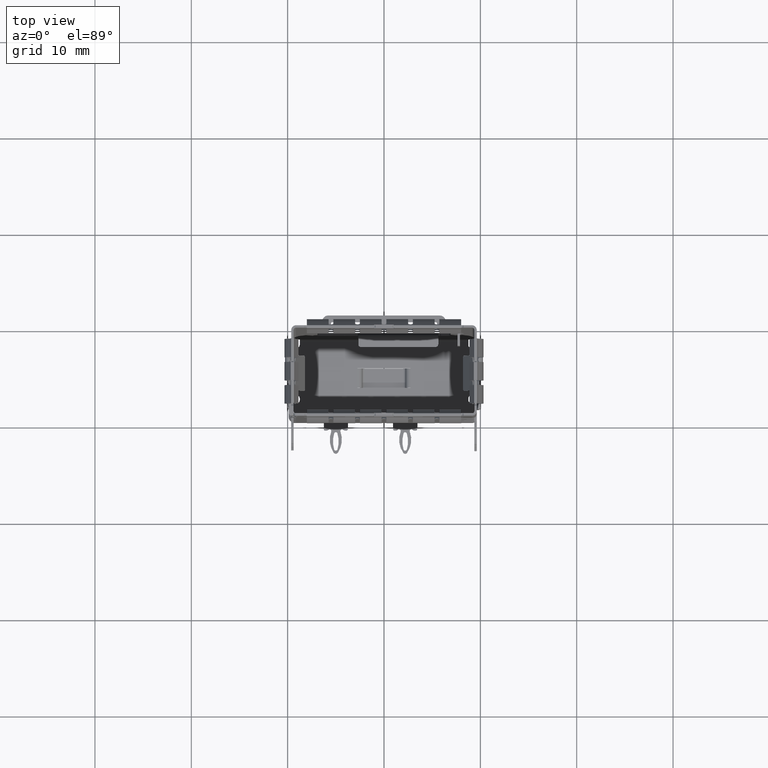
[diagram: clean part render]
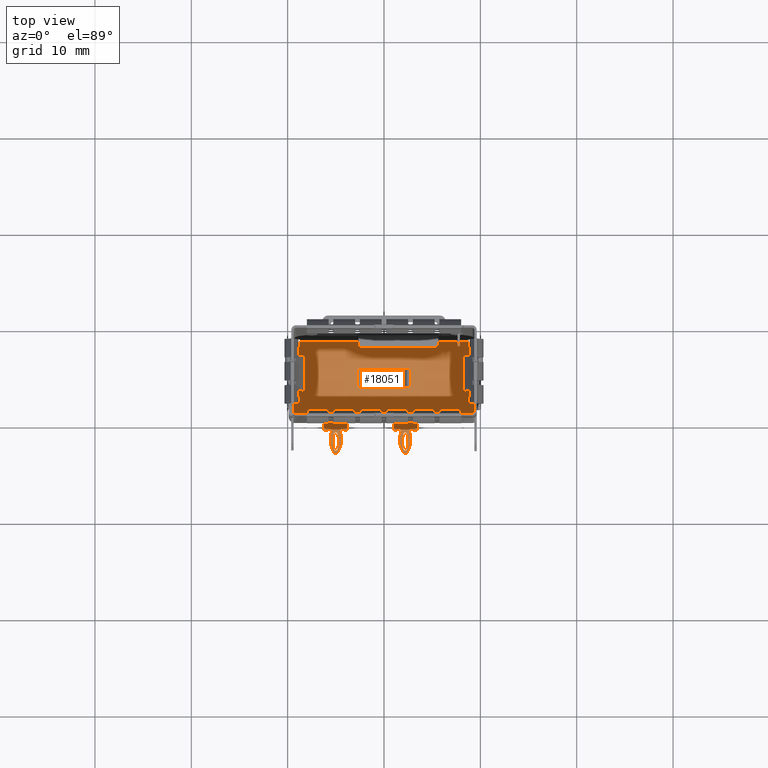
[diagram: same view with one face highlighted and labeled with its STEP entity id]
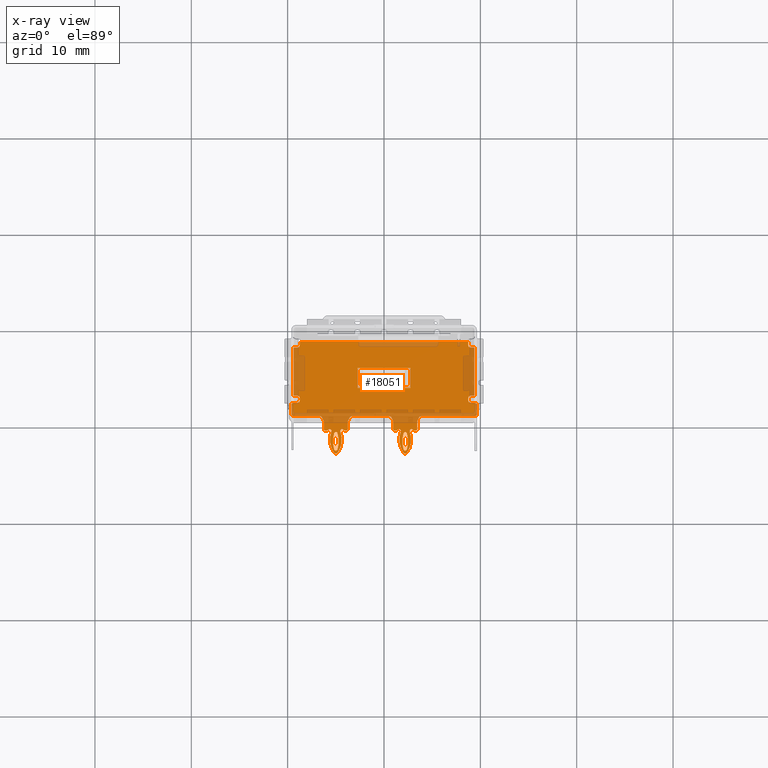
[diagram: x-ray of the same camera — body ghosted, the highlighted face saturated]
A machine part, top view. The second image highlights one B-rep face of the part: STEP entity #18051.
The next image is the same camera in x-ray: the body ghosted, the highlighted face saturated — about 21% of this face is hidden behind the body in this view.
In plain terms, the highlighted planar face has unit normal (0, 0, 1).
Its self-contained STEP definition (entity closure, byte-faithful):
#16 = EDGE_CURVE ( 'NONE', #9976, #59285, #53249, .T. ) ;
#35 = DIRECTION ( 'NONE',  ( 0.0000000000000000000, 1.000000000000000000, 0.0000000000000000000 ) ) ;
#71 = VERTEX_POINT ( 'NONE', #13064 ) ;
#84 = CIRCLE ( 'NONE', #35922, 0.2299999999999975675 ) ;
#174 = CIRCLE ( 'NONE', #49710, 0.2500000000000000000 ) ;
#234 = EDGE_CURVE ( 'NONE', #12246, #5266, #53262, .T. ) ;
#253 = DIRECTION ( 'NONE',  ( 0.0000000000000000000, 1.000000000000000000, 0.0000000000000000000 ) ) ;
#288 = ORIENTED_EDGE ( 'NONE', *, *, #8147, .F. ) ;
#400 = CARTESIAN_POINT ( 'NONE',  ( 9.375000000000000000, 1.175000001274060013, -70.97499999872590593 ) ) ;
#405 = CARTESIAN_POINT ( 'NONE',  ( 2.372341041624769886, -0.5880522823246390196, -70.97499999872590593 ) ) ;
#445 = EDGE_CURVE ( 'NONE', #2492, #12336, #13136, .T. ) ;
#480 = ORIENTED_EDGE ( 'NONE', *, *, #51686, .F. ) ;
#639 = VECTOR ( 'NONE', #13170, 1000.000000000000000 ) ;
#687 = ORIENTED_EDGE ( 'NONE', *, *, #45535, .T. ) ;
#706 = CARTESIAN_POINT ( 'NONE',  ( 0.9499999999999999556, -0.1500000000000849820, -70.97499999872590593 ) ) ;
#786 = CIRCLE ( 'NONE', #53795, 0.2500000000000054401 ) ;
#801 = EDGE_CURVE ( 'NONE', #36220, #59285, #2292, .T. ) ;
#829 = CIRCLE ( 'NONE', #34417, 2.364381171422969885 ) ;
#954 = VECTOR ( 'NONE', #47541, 1000.000000000000000 ) ;
#1110 = ORIENTED_EDGE ( 'NONE', *, *, #54212, .F. ) ;
#1243 = EDGE_CURVE ( 'NONE', #44148, #28391, #64902, .T. ) ;
#1290 = ORIENTED_EDGE ( 'NONE', *, *, #46454, .F. ) ;
#1402 = AXIS2_PLACEMENT_3D ( 'NONE', #13937, #62127, #14843 ) ;
#1525 = LINE ( 'NONE', #30638, #33148 ) ;
#1847 = AXIS2_PLACEMENT_3D ( 'NONE', #22732, #59743, #48893 ) ;
#1944 = ORIENTED_EDGE ( 'NONE', *, *, #14361, .T. ) ;
#1969 = VECTOR ( 'NONE', #44463, 1000.000000000000000 ) ;
#2084 = CIRCLE ( 'NONE', #41105, 0.2000000000000000944 ) ;
#2096 = DIRECTION ( 'NONE',  ( -2.980035255129504954E-33, 0.0000000000000000000, -1.000000000000000000 ) ) ;
#2228 = ORIENTED_EDGE ( 'NONE', *, *, #59163, .T. ) ;
#2234 = VERTEX_POINT ( 'NONE', #56062 ) ;
#2292 = LINE ( 'NONE', #46329, #21410 ) ;
#2492 = VERTEX_POINT ( 'NONE', #22074 ) ;
#2574 = AXIS2_PLACEMENT_3D ( 'NONE', #45416, #2096, #50817 ) ;
#2658 = CARTESIAN_POINT ( 'NONE',  ( -5.000000000000000000, -2.680000000000095195, -70.97499999872590593 ) ) ;
#2758 = EDGE_CURVE ( 'NONE', #21414, #36253, #46826, .T. ) ;
#2893 = CARTESIAN_POINT ( 'NONE',  ( 3.013457455320160072, -0.2421942221073714874, -70.97499999872590593 ) ) ;
#2906 = CIRCLE ( 'NONE', #32867, 2.882717391304339571 ) ;
#2934 = ORIENTED_EDGE ( 'NONE', *, *, #47351, .T. ) ;
#2997 = CARTESIAN_POINT ( 'NONE',  ( 2.750000000000000000, 4.150000000000000355, -70.97499999872600540 ) ) ;
#3058 = CARTESIAN_POINT ( 'NONE',  ( -3.345491502812535156, 1.175000001274046024, -70.97499999872590593 ) ) ;
#3072 = VERTEX_POINT ( 'NONE', #36867 ) ;
#3310 = DIRECTION ( 'NONE',  ( -1.000000000000000000, 0.0000000000000000000, 0.0000000000000000000 ) ) ;
#3318 = CARTESIAN_POINT ( 'NONE',  ( 2.750000000000000000, 4.150000000000255262, -70.97499999872600540 ) ) ;
#3543 = DIRECTION ( 'NONE',  ( 1.000000000000000000, 0.0000000000000000000, 0.0000000000000000000 ) ) ;
#3557 = LINE ( 'NONE', #62737, #38527 ) ;
#3566 = VERTEX_POINT ( 'NONE', #25786 ) ;
#3617 = EDGE_CURVE ( 'NONE', #36253, #53791, #10046, .T. ) ;
#3663 = DIRECTION ( 'NONE',  ( -5.256737797871670339E-16, -1.000000000000000000, 0.0000000000000000000 ) ) ;
#3683 = CARTESIAN_POINT ( 'NONE',  ( -2.734846922834955230, 6.150000000000000355, -70.97499999872600540 ) ) ;
#3720 = DIRECTION ( 'NONE',  ( -1.000000000000000000, 0.0000000000000000000, 0.0000000000000000000 ) ) ;
#3845 = ORIENTED_EDGE ( 'NONE', *, *, #445, .F. ) ;
#3869 = EDGE_CURVE ( 'NONE', #65779, #47161, #66962, .T. ) ;
#4022 = DIRECTION ( 'NONE',  ( 0.0000000000000000000, 0.0000000000000000000, -1.000000000000000000 ) ) ;
#4062 = AXIS2_PLACEMENT_3D ( 'NONE', #61003, #28618, #39846 ) ;
#4173 = VERTEX_POINT ( 'NONE', #9898 ) ;
#4355 = EDGE_CURVE ( 'NONE', #12336, #32559, #62635, .T. ) ;
#4358 = EDGE_CURVE ( 'NONE', #34842, #20927, #52585, .T. ) ;
#4378 = VERTEX_POINT ( 'NONE', #41192 ) ;
#4389 = LINE ( 'NONE', #30319, #17743 ) ;
#4480 = CARTESIAN_POINT ( 'NONE',  ( -6.250000000000000000, 0.6750000012740611233, -70.97499999872590593 ) ) ;
#4498 = ORIENTED_EDGE ( 'NONE', *, *, #55720, .T. ) ;
#4673 = CARTESIAN_POINT ( 'NONE',  ( -8.750000000000000000, 8.900000000000000355, -70.97499999872600540 ) ) ;
#4777 = ORIENTED_EDGE ( 'NONE', *, *, #11010, .F. ) ;
#4861 = CIRCLE ( 'NONE', #26140, 0.2299999999999975675 ) ;
#4873 = DIRECTION ( 'NONE',  ( 0.0000000000000000000, -1.000000000000000000, 0.0000000000000000000 ) ) ;
#4970 = ORIENTED_EDGE ( 'NONE', *, *, #46073, .T. ) ;
#5051 = CARTESIAN_POINT ( 'NONE',  ( -2.412282608695660358, -1.420000000000100071, -70.97499999872590593 ) ) ;
#5205 = VECTOR ( 'NONE', #9260, 1000.000000000000000 ) ;
#5266 = VERTEX_POINT ( 'NONE', #14863 ) ;
#5417 = ORIENTED_EDGE ( 'NONE', *, *, #4355, .F. ) ;
#5539 = DIRECTION ( 'NONE',  ( 1.000000000000000000, -1.577021341797094849E-16, 5.506140585841919089E-31 ) ) ;
#5576 = ORIENTED_EDGE ( 'NONE', *, *, #11807, .T. ) ;
#5577 = EDGE_CURVE ( 'NONE', #63999, #33264, #30572, .T. ) ;
#5579 = CIRCLE ( 'NONE', #27964, 0.1800000000000000488 ) ;
#5627 = CIRCLE ( 'NONE', #35529, 0.1800000000000000488 ) ;
#5636 = DIRECTION ( 'NONE',  ( 1.445602896647314107E-14, 1.000000000000000000, -3.491481338843135327E-15 ) ) ;
#5664 = AXIS2_PLACEMENT_3D ( 'NONE', #34576, #18992, #8071 ) ;
#5708 = VECTOR ( 'NONE', #52356, 1000.000000000000000 ) ;
#5776 = CIRCLE ( 'NONE', #60738, 0.2500000000000000000 ) ;
#5809 = CARTESIAN_POINT ( 'NONE',  ( -5.172341041624769709, -0.5880522823246460140, -70.97499999872590593 ) ) ;
#5822 = DIRECTION ( 'NONE',  ( -2.980035255129504954E-33, -4.814134000674680451E-15, -1.000000000000000000 ) ) ;
#5900 = ORIENTED_EDGE ( 'NONE', *, *, #56232, .F. ) ;
#6158 = CIRCLE ( 'NONE', #23884, 0.1499999999999974132 ) ;
#6332 = CARTESIAN_POINT ( 'NONE',  ( 9.000000000000000000, 3.060000001274044923, -70.97499999872600540 ) ) ;
#6399 = EDGE_CURVE ( 'NONE', #48589, #21064, #52330, .T. ) ;
#6407 = CARTESIAN_POINT ( 'NONE',  ( 9.000000000000000000, 8.310000001274049808, -70.97499999872600540 ) ) ;
#6425 = CARTESIAN_POINT ( 'NONE',  ( 8.750000000000000000, 3.060000001274044923, -70.97499999872600540 ) ) ;
#6647 = CARTESIAN_POINT ( 'NONE',  ( 0.5454915028125389975, 1.175000001274046024, -70.97499999872590593 ) ) ;
#6713 = CARTESIAN_POINT ( 'NONE',  ( -8.750000000000000000, 2.820000001274039825, -70.97499999872590593 ) ) ;
#7041 = CARTESIAN_POINT ( 'NONE',  ( -3.750000000000000000, -0.1500000000000925038, -70.97499999872590593 ) ) ;
#7081 = VECTOR ( 'NONE', #49875, 1000.000000000000227 ) ;
#7160 = VERTEX_POINT ( 'NONE', #11519 ) ;
#7395 = EDGE_CURVE ( 'NONE', #66424, #48589, #16195, .T. ) ;
#7407 = ORIENTED_EDGE ( 'NONE', *, *, #3617, .T. ) ;
#7460 = VERTEX_POINT ( 'NONE', #30746 ) ;
#7659 = EDGE_LOOP ( 'NONE', ( #7897, #39754, #30236, #19065, #59412 ) ) ;
#7730 = EDGE_CURVE ( 'NONE', #68469, #47020, #64729, .T. ) ;
#7732 = CIRCLE ( 'NONE', #38437, 0.2500000000000000000 ) ;
#7897 = ORIENTED_EDGE ( 'NONE', *, *, #69272, .T. ) ;
#8046 = CARTESIAN_POINT ( 'NONE',  ( -2.734846922834955230, 6.150000000000000355, -70.97499999872600540 ) ) ;
#8071 = DIRECTION ( 'NONE',  ( 0.0000000000000000000, 1.000000000000000000, 0.0000000000000000000 ) ) ;
#8147 = EDGE_CURVE ( 'NONE', #9976, #61715, #25204, .T. ) ;
#8254 = ORIENTED_EDGE ( 'NONE', *, *, #12712, .F. ) ;
#8389 = CIRCLE ( 'NONE', #21976, 2.882717391304345345 ) ;
#8573 = DIRECTION ( 'NONE',  ( 0.0000000000000000000, -1.000000000000000000, 0.0000000000000000000 ) ) ;
#8637 = CARTESIAN_POINT ( 'NONE',  ( -9.125000000000000000, 9.244048621274050248, -70.97499999872600540 ) ) ;
#8699 = DIRECTION ( 'NONE',  ( 6.938893903907228378E-15, -1.000000000000000000, 0.0000000000000000000 ) ) ;
#8756 = DIRECTION ( 'NONE',  ( 0.0000000000000000000, 1.000000000000000000, 0.0000000000000000000 ) ) ;
#8871 = CIRCLE ( 'NONE', #64331, 0.1999999999999920730 ) ;
#9026 = VERTEX_POINT ( 'NONE', #59761 ) ;
#9051 = ORIENTED_EDGE ( 'NONE', *, *, #61180, .T. ) ;
#9257 = VECTOR ( 'NONE', #34586, 999.9999999999998863 ) ;
#9260 = DIRECTION ( 'NONE',  ( -1.051347559574333871E-15, 1.000000000000000000, 0.0000000000000000000 ) ) ;
#9264 = DIRECTION ( 'NONE',  ( -1.000000000000000000, 0.0000000000000000000, 0.0000000000000000000 ) ) ;
#9269 = CARTESIAN_POINT ( 'NONE',  ( 2.200000000000000178, -2.450000000000090328, -70.97499999872590593 ) ) ;
#9298 = VECTOR ( 'NONE', #40248, 1000.000000000000000 ) ;
#9328 = CARTESIAN_POINT ( 'NONE',  ( -2.750000000000000000, 4.139999999999999680, -70.97499999872600540 ) ) ;
#9479 = DIRECTION ( 'NONE',  ( 0.0000000000000000000, -1.000000000000000000, 0.0000000000000000000 ) ) ;
#9497 = CIRCLE ( 'NONE', #63794, 2.882717391304345345 ) ;
#9527 = VECTOR ( 'NONE', #66491, 1000.000000000000000 ) ;
#9556 = LINE ( 'NONE', #18366, #7081 ) ;
#9640 = AXIS2_PLACEMENT_3D ( 'NONE', #56544, #45498, #56094 ) ;
#9819 = CARTESIAN_POINT ( 'NONE',  ( -5.950000000000000178, -0.1500000000000925038, -70.97499999872590593 ) ) ;
#9882 = ORIENTED_EDGE ( 'NONE', *, *, #16, .T. ) ;
#9898 = CARTESIAN_POINT ( 'NONE',  ( -9.625000000000000000, 1.425000001274060013, -70.97499999872590593 ) ) ;
#9957 = VECTOR ( 'NONE', #15955, 1000.000000000000000 ) ;
#9976 = VERTEX_POINT ( 'NONE', #6647 ) ;
#10029 = DIRECTION ( 'NONE',  ( -2.980035255129504954E-33, 0.0000000000000000000, -1.000000000000000000 ) ) ;
#10046 = LINE ( 'NONE', #52721, #41743 ) ;
#10195 = AXIS2_PLACEMENT_3D ( 'NONE', #9819, #31881, #35 ) ;
#10262 = LINE ( 'NONE', #61445, #38571 ) ;
#10370 = DIRECTION ( 'NONE',  ( 0.0000000000000000000, 0.0000000000000000000, -1.000000000000000000 ) ) ;
#10419 = EDGE_CURVE ( 'NONE', #29020, #25870, #44274, .T. ) ;
#10646 = DIRECTION ( 'NONE',  ( 0.0000000000000000000, 0.0000000000000000000, -1.000000000000000000 ) ) ;
#10830 = EDGE_CURVE ( 'NONE', #14100, #12246, #20096, .T. ) ;
#10922 = CARTESIAN_POINT ( 'NONE',  ( 3.854508497187460137, 1.175000001274046024, -70.97499999872590593 ) ) ;
#11010 = EDGE_CURVE ( 'NONE', #28391, #7160, #51840, .T. ) ;
#11060 = ORIENTED_EDGE ( 'NONE', *, *, #59111, .F. ) ;
#11180 = VERTEX_POINT ( 'NONE', #6407 ) ;
#11417 = AXIS2_PLACEMENT_3D ( 'NONE', #47047, #19960, #51778 ) ;
#11452 = DIRECTION ( 'NONE',  ( 0.0000000000000000000, 1.000000000000000000, 0.0000000000000000000 ) ) ;
#11508 = CIRCLE ( 'NONE', #56741, 0.1999999999999974853 ) ;
#11519 = CARTESIAN_POINT ( 'NONE',  ( -8.750000000000000000, 8.560000001274049808, -70.97499999872600540 ) ) ;
#11646 = CIRCLE ( 'NONE', #55488, 0.1500000000000034917 ) ;
#11725 = CIRCLE ( 'NONE', #27555, 0.2500000000000000000 ) ;
#11746 = CARTESIAN_POINT ( 'NONE',  ( -4.827658958375230291, -2.251947717675545135, -70.97499999872590593 ) ) ;
#11807 = EDGE_CURVE ( 'NONE', #3072, #19749, #829, .T. ) ;
#12073 = CARTESIAN_POINT ( 'NONE',  ( -5.000000000000000000, -0.6400000000000970468, -70.97499999872590593 ) ) ;
#12189 = EDGE_CURVE ( 'NONE', #20140, #67539, #63482, .T. ) ;
#12246 = VERTEX_POINT ( 'NONE', #8046 ) ;
#12257 = VERTEX_POINT ( 'NONE', #29424 ) ;
#12330 = DIRECTION ( 'NONE',  ( 0.0000000000000000000, -1.000000000000000000, 4.814134000674686762E-15 ) ) ;
#12336 = VERTEX_POINT ( 'NONE', #42425 ) ;
#12448 = LINE ( 'NONE', #51655, #67703 ) ;
#12712 = EDGE_CURVE ( 'NONE', #17972, #36819, #1525, .T. ) ;
#12787 = VERTEX_POINT ( 'NONE', #30406 ) ;
#12918 = VERTEX_POINT ( 'NONE', #405 ) ;
#13064 = CARTESIAN_POINT ( 'NONE',  ( 1.328465195488786055, -0.2778405768796764486, -70.97499999872590593 ) ) ;
#13136 = LINE ( 'NONE', #16974, #54147 ) ;
#13170 = DIRECTION ( 'NONE',  ( -1.000000000000000000, 0.0000000000000000000, 0.0000000000000000000 ) ) ;
#13306 = VECTOR ( 'NONE', #16950, 1000.000000000000000 ) ;
#13673 = CIRCLE ( 'NONE', #67339, 2.364381171422969441 ) ;
#13682 = VERTEX_POINT ( 'NONE', #54924 ) ;
#13715 = CARTESIAN_POINT ( 'NONE',  ( -4.128465195488789874, -0.2778405768796894937, -70.97499999872590593 ) ) ;
#13919 = CARTESIAN_POINT ( 'NONE',  ( 3.449999999999999734, 0.6750000012740680067, -70.97499999872590593 ) ) ;
#13937 = CARTESIAN_POINT ( 'NONE',  ( -4.355000000000000426, -0.3500000000000985101, -70.97499999872590593 ) ) ;
#13991 = CARTESIAN_POINT ( 'NONE',  ( 2.750000000000000000, 6.150000000000000355, -70.97499999872600540 ) ) ;
#14100 = VERTEX_POINT ( 'NONE', #49418 ) ;
#14117 = CARTESIAN_POINT ( 'NONE',  ( 3.449999999999999734, 0.6750000012740680067, -70.97499999872590593 ) ) ;
#14226 = CARTESIAN_POINT ( 'NONE',  ( -3.899999999999999911, -0.3000000000000899725, -70.97499999872590593 ) ) ;
#14244 = CARTESIAN_POINT ( 'NONE',  ( 9.000000000000000000, 2.570000001274039825, -70.97499999872590593 ) ) ;
#14361 = EDGE_CURVE ( 'NONE', #41388, #14100, #15446, .T. ) ;
#14377 = DIRECTION ( 'NONE',  ( -0.4472135954999519325, 0.8944271909999189640, 0.0000000000000000000 ) ) ;
#14380 = CIRCLE ( 'NONE', #43380, 0.2499999999999997780 ) ;
#14720 = VERTEX_POINT ( 'NONE', #26103 ) ;
#14829 = DIRECTION ( 'NONE',  ( 1.000000000000000000, 0.0000000000000000000, 0.0000000000000000000 ) ) ;
#14843 = DIRECTION ( 'NONE',  ( 0.0000000000000000000, -1.000000000000000000, 0.0000000000000000000 ) ) ;
#14863 = CARTESIAN_POINT ( 'NONE',  ( -2.750000000000000000, 6.150000000000000355, -70.97499999872600540 ) ) ;
#14866 = EDGE_CURVE ( 'NONE', #58103, #63086, #51346, .T. ) ;
#14930 = DIRECTION ( 'NONE',  ( -0.8522705125306180296, -0.5231013032585539735, 0.0000000000000000000 ) ) ;
#14974 = CIRCLE ( 'NONE', #48080, 0.2500000000000054401 ) ;
#15069 = CIRCLE ( 'NONE', #1847, 2.364381171422974770 ) ;
#15321 = DIRECTION ( 'NONE',  ( 0.0000000000000000000, 0.0000000000000000000, 1.000000000000000000 ) ) ;
#15352 = DIRECTION ( 'NONE',  ( 0.0000000000000000000, -1.000000000000000000, 3.491481338843135327E-15 ) ) ;
#15409 = ORIENTED_EDGE ( 'NONE', *, *, #10830, .T. ) ;
#15446 = LINE ( 'NONE', #2997, #31262 ) ;
#15575 = EDGE_CURVE ( 'NONE', #43080, #63998, #54597, .T. ) ;
#15646 = ORIENTED_EDGE ( 'NONE', *, *, #10419, .F. ) ;
#15863 = DIRECTION ( 'NONE',  ( -1.051347559574333871E-15, 1.000000000000000000, 0.0000000000000000000 ) ) ;
#15955 = DIRECTION ( 'NONE',  ( -1.000000000000000000, 0.0000000000000000000, 0.0000000000000000000 ) ) ;
#16066 = AXIS2_PLACEMENT_3D ( 'NONE', #42542, #58751, #63890 ) ;
#16195 = LINE ( 'NONE', #25617, #65610 ) ;
#16200 = AXIS2_PLACEMENT_3D ( 'NONE', #51247, #61603, #8756 ) ;
#16443 = EDGE_CURVE ( 'NONE', #21064, #42427, #54234, .T. ) ;
#16546 = LINE ( 'NONE', #52580, #5708 ) ;
#16652 = VERTEX_POINT ( 'NONE', #50778 ) ;
#16699 = ORIENTED_EDGE ( 'NONE', *, *, #42034, .F. ) ;
#16742 = VECTOR ( 'NONE', #35771, 1000.000000000000227 ) ;
#16950 = DIRECTION ( 'NONE',  ( -1.000000000000000000, 0.0000000000000000000, 0.0000000000000000000 ) ) ;
#16963 = DIRECTION ( 'NONE',  ( 0.0000000000000000000, 0.0000000000000000000, 1.000000000000000000 ) ) ;
#16974 = CARTESIAN_POINT ( 'NONE',  ( 3.299999999999999822, -0.3000000000000819789, -70.97499999872590593 ) ) ;
#17297 = AXIS2_PLACEMENT_3D ( 'NONE', #32196, #37811, #21986 ) ;
#17443 = VECTOR ( 'NONE', #24522, 1000.000000000000000 ) ;
#17743 = VECTOR ( 'NONE', #67873, 1000.000000000000000 ) ;
#17861 = CARTESIAN_POINT ( 'NONE',  ( -9.000000000000000000, 3.060000001274044923, -70.97499999872600540 ) ) ;
#17966 = DIRECTION ( 'NONE',  ( 0.0000000000000000000, 0.0000000000000000000, -1.000000000000000000 ) ) ;
#17972 = VERTEX_POINT ( 'NONE', #9328 ) ;
#18051 = ADVANCED_FACE ( 'NONE', ( #24777, #61648, #67550, #53296 ), #51124, .T. ) ;
#18104 = CARTESIAN_POINT ( 'NONE',  ( 2.750000000000000000, 6.150000000000000355, -70.97499999872600540 ) ) ;
#18303 = CARTESIAN_POINT ( 'NONE',  ( 9.000000000000000000, 8.310000001274049808, -70.97499999872600540 ) ) ;
#18366 = CARTESIAN_POINT ( 'NONE',  ( 2.939158234586535023, -0.1965913077445869961, -70.97499999872590593 ) ) ;
#18512 = CARTESIAN_POINT ( 'NONE',  ( 9.625000000000000000, 1.425000001274060013, -70.97499999872590593 ) ) ;
#18645 = CIRCLE ( 'NONE', #28871, 0.2299999999999975675 ) ;
#18649 = CARTESIAN_POINT ( 'NONE',  ( -6.430901699437489683, 1.036803400149030052, -70.97499999872590593 ) ) ;
#18747 = DIRECTION ( 'NONE',  ( 1.000000000000000000, 0.0000000000000000000, 0.0000000000000000000 ) ) ;
#18901 = CARTESIAN_POINT ( 'NONE',  ( -4.810409839233400042, -2.580213558973400101, -70.97499999872590593 ) ) ;
#18925 = DIRECTION ( 'NONE',  ( -2.980035255129504954E-33, 0.0000000000000000000, -1.000000000000000000 ) ) ;
#18992 = DIRECTION ( 'NONE',  ( 0.0000000000000000000, 0.0000000000000000000, 1.000000000000000000 ) ) ;
#19058 = LINE ( 'NONE', #6425, #58406 ) ;
#19065 = ORIENTED_EDGE ( 'NONE', *, *, #63229, .T. ) ;
#19130 = ORIENTED_EDGE ( 'NONE', *, *, #57378, .T. ) ;
#19222 = CARTESIAN_POINT ( 'NONE',  ( -5.000000000000000000, -0.4600000000000959988, -70.97499999872590593 ) ) ;
#19282 = CARTESIAN_POINT ( 'NONE',  ( -9.125000000000000000, 8.900000000000000355, -70.97499999872600540 ) ) ;
#19349 = ORIENTED_EDGE ( 'NONE', *, *, #14866, .F. ) ;
#19523 = EDGE_CURVE ( 'NONE', #2234, #22098, #58874, .T. ) ;
#19635 = AXIS2_PLACEMENT_3D ( 'NONE', #32213, #47688, #42561 ) ;
#19749 = VERTEX_POINT ( 'NONE', #42459 ) ;
#19825 = EDGE_CURVE ( 'NONE', #68133, #32677, #64731, .T. ) ;
#19914 = LINE ( 'NONE', #4480, #39937 ) ;
#19943 = VERTEX_POINT ( 'NONE', #19222 ) ;
#19960 = DIRECTION ( 'NONE',  ( -2.980035255129504954E-33, 0.0000000000000000000, -1.000000000000000000 ) ) ;
#20053 = CIRCLE ( 'NONE', #35303, 0.2500000000000000000 ) ;
#20096 = LINE ( 'NONE', #3683, #9298 ) ;
#20140 = VERTEX_POINT ( 'NONE', #37573 ) ;
#20143 = DIRECTION ( 'NONE',  ( -0.4472135954999519325, -0.8944271909999189640, 0.0000000000000000000 ) ) ;
#20345 = ORIENTED_EDGE ( 'NONE', *, *, #31523, .T. ) ;
#20706 = DIRECTION ( 'NONE',  ( -2.980035255129504954E-33, 0.0000000000000000000, -1.000000000000000000 ) ) ;
#20895 = CIRCLE ( 'NONE', #56011, 0.2299999999999975675 ) ;
#20911 = VECTOR ( 'NONE', #20143, 999.9999999999998863 ) ;
#20927 = VERTEX_POINT ( 'NONE', #55570 ) ;
#20943 = ORIENTED_EDGE ( 'NONE', *, *, #59360, .T. ) ;
#21064 = VERTEX_POINT ( 'NONE', #57655 ) ;
#21410 = VECTOR ( 'NONE', #14377, 999.9999999999998863 ) ;
#21414 = VERTEX_POINT ( 'NONE', #56631 ) ;
#21470 = CARTESIAN_POINT ( 'NONE',  ( -9.000000000000000000, 8.310000001274049808, -70.97499999872600540 ) ) ;
#21542 = CARTESIAN_POINT ( 'NONE',  ( -5.813457455320159895, -0.2421942221073855039, -70.97499999872590593 ) ) ;
#21813 = CARTESIAN_POINT ( 'NONE',  ( 9.424999999999998934, 2.370000001274035206, -70.97499999872590593 ) ) ;
#21878 = DIRECTION ( 'NONE',  ( 0.0000000000000000000, 1.000000000000000000, -4.814134000674677295E-15 ) ) ;
#21976 = AXIS2_PLACEMENT_3D ( 'NONE', #53491, #31631, #58868 ) ;
#21986 = DIRECTION ( 'NONE',  ( 0.0000000000000000000, -1.000000000000000000, 0.0000000000000000000 ) ) ;
#22074 = CARTESIAN_POINT ( 'NONE',  ( 3.299999999999999822, -0.3000000000000819789, -70.97499999872590593 ) ) ;
#22086 = VECTOR ( 'NONE', #26409, 1000.000000000000000 ) ;
#22098 = VERTEX_POINT ( 'NONE', #62426 ) ;
#22188 = CARTESIAN_POINT ( 'NONE',  ( 3.630901699437480090, 1.036803400149030052, -70.97499999872590593 ) ) ;
#22222 = EDGE_CURVE ( 'NONE', #71, #63999, #45895, .T. ) ;
#22732 = CARTESIAN_POINT ( 'NONE',  ( 0.4406188285770230029, -1.241628832449642061, -70.97499999872590593 ) ) ;
#22903 = EDGE_CURVE ( 'NONE', #20140, #41254, #5776, .T. ) ;
#22915 = VERTEX_POINT ( 'NONE', #35193 ) ;
#22951 = VECTOR ( 'NONE', #18747, 1000.000000000000000 ) ;
#22985 = DIRECTION ( 'NONE',  ( 0.0000000000000000000, 1.000000000000000000, 0.0000000000000000000 ) ) ;
#23004 = VECTOR ( 'NONE', #3663, 1000.000000000000000 ) ;
#23018 = EDGE_CURVE ( 'NONE', #49180, #63788, #19914, .T. ) ;
#23173 = CARTESIAN_POINT ( 'NONE',  ( 1.742521355890215062, -0.4195394929885504776, -70.97499999872590593 ) ) ;
#23334 = VECTOR ( 'NONE', #45136, 1000.000000000000000 ) ;
#23386 = VECTOR ( 'NONE', #24557, 1000.000000000000000 ) ;
#23463 = ORIENTED_EDGE ( 'NONE', *, *, #6399, .F. ) ;
#23468 = CARTESIAN_POINT ( 'NONE',  ( -6.500000000000000000, 1.175000001274060013, -70.97499999872590593 ) ) ;
#23555 = EDGE_CURVE ( 'NONE', #33264, #64430, #49886, .T. ) ;
#23749 = LINE ( 'NONE', #32219, #22086 ) ;
#23864 = VECTOR ( 'NONE', #3310, 1000.000000000000000 ) ;
#23884 = AXIS2_PLACEMENT_3D ( 'NONE', #26762, #20706, #253 ) ;
#24000 = CARTESIAN_POINT ( 'NONE',  ( 0.5454915028125379983, 0.9250000012740420274, -70.97499999872590593 ) ) ;
#24039 = DIRECTION ( 'NONE',  ( -4.845403715540890270E-29, -6.724348460747230314E-43, -1.000000000000000000 ) ) ;
#24078 = CARTESIAN_POINT ( 'NONE',  ( 9.379999998725960353, 9.244048621274050248, -70.97499999872600540 ) ) ;
#24216 = DIRECTION ( 'NONE',  ( -0.0000000000000000000, 3.491481338843135327E-15, 1.000000000000000000 ) ) ;
#24266 = CARTESIAN_POINT ( 'NONE',  ( 9.000000000000000000, 2.820000001274039825, -70.97499999872590593 ) ) ;
#24475 = DIRECTION ( 'NONE',  ( 0.0000000000000000000, -1.000000000000000000, 0.0000000000000000000 ) ) ;
#24522 = DIRECTION ( 'NONE',  ( 0.0000000000000000000, -1.000000000000000000, 3.491481338843135327E-15 ) ) ;
#24557 = DIRECTION ( 'NONE',  ( -1.000000000000000000, 0.0000000000000000000, 0.0000000000000000000 ) ) ;
#24580 = CARTESIAN_POINT ( 'NONE',  ( 3.959381171422974521, -1.241628832449642061, -70.97499999872590593 ) ) ;
#24602 = LINE ( 'NONE', #23468, #40490 ) ;
#24604 = DIRECTION ( 'NONE',  ( -5.256737797871670339E-16, -1.000000000000000000, 0.0000000000000000000 ) ) ;
#24681 = DIRECTION ( 'NONE',  ( -1.000000000000000000, 1.577021341797100025E-16, -5.506140585841929599E-31 ) ) ;
#24777 = FACE_OUTER_BOUND ( 'NONE', #44758, .T. ) ;
#25049 = CARTESIAN_POINT ( 'NONE',  ( -9.000000000000000000, 2.570000001274039825, -70.97499999872590593 ) ) ;
#25174 = DIRECTION ( 'NONE',  ( 0.0000000000000000000, 1.000000000000000000, 0.0000000000000000000 ) ) ;
#25204 = LINE ( 'NONE', #50085, #1969 ) ;
#25233 = DIRECTION ( 'NONE',  ( 0.0000000000000000000, 1.000000000000000000, -3.491481338843135327E-15 ) ) ;
#25273 = DIRECTION ( 'NONE',  ( 0.0000000000000000000, 1.000000000000000000, 0.0000000000000000000 ) ) ;
#25566 = ORIENTED_EDGE ( 'NONE', *, *, #49928, .T. ) ;
#25617 = CARTESIAN_POINT ( 'NONE',  ( -5.739158234586540175, -0.1965913077446085067, -70.97499999872590593 ) ) ;
#25751 = VERTEX_POINT ( 'NONE', #51523 ) ;
#25786 = CARTESIAN_POINT ( 'NONE',  ( 0.9499999999999999556, 0.6159830068991221097, -70.97499999872590593 ) ) ;
#25870 = VERTEX_POINT ( 'NONE', #53389 ) ;
#26081 = VERTEX_POINT ( 'NONE', #34066 ) ;
#26103 = CARTESIAN_POINT ( 'NONE',  ( -6.276393202250029724, 0.7277864057741020298, -70.97499999872590593 ) ) ;
#26140 = AXIS2_PLACEMENT_3D ( 'NONE', #9269, #62783, #9479 ) ;
#26314 = LINE ( 'NONE', #14226, #23864 ) ;
#26405 = VECTOR ( 'NONE', #24681, 1000.000000000000000 ) ;
#26409 = DIRECTION ( 'NONE',  ( 2.431304321945504834E-16, 1.000000000000000000, -3.491481338843135327E-15 ) ) ;
#26630 = DIRECTION ( 'NONE',  ( 0.0000000000000000000, 0.0000000000000000000, 1.000000000000000000 ) ) ;
#26754 = ORIENTED_EDGE ( 'NONE', *, *, #53374, .F. ) ;
#26762 = CARTESIAN_POINT ( 'NONE',  ( 3.299999999999999822, -0.1500000000000849820, -70.97499999872590593 ) ) ;
#26952 = CARTESIAN_POINT ( 'NONE',  ( -3.500000000000000000, 0.6159830068991131169, -70.97499999872590593 ) ) ;
#27264 = EDGE_CURVE ( 'NONE', #63086, #65779, #57123, .T. ) ;
#27267 = CARTESIAN_POINT ( 'NONE',  ( -8.750000000000000000, 3.060000001274044923, -70.97499999872600540 ) ) ;
#27520 = EDGE_CURVE ( 'NONE', #5266, #25870, #10262, .T. ) ;
#27555 = AXIS2_PLACEMENT_3D ( 'NONE', #26952, #64474, #53925 ) ;
#27562 = AXIS2_PLACEMENT_3D ( 'NONE', #43017, #59466, #48138 ) ;
#27612 = CARTESIAN_POINT ( 'NONE',  ( -5.000000000000000000, -2.200000000000095213, -70.97499999872590593 ) ) ;
#27949 = ORIENTED_EDGE ( 'NONE', *, *, #54989, .F. ) ;
#27964 = AXIS2_PLACEMENT_3D ( 'NONE', #46452, #18925, #25174 ) ;
#28034 = ORIENTED_EDGE ( 'NONE', *, *, #43078, .T. ) ;
#28219 = LINE ( 'NONE', #24078, #17443 ) ;
#28251 = VERTEX_POINT ( 'NONE', #52146 ) ;
#28325 = ORIENTED_EDGE ( 'NONE', *, *, #23018, .F. ) ;
#28391 = VERTEX_POINT ( 'NONE', #21470 ) ;
#28585 = EDGE_CURVE ( 'NONE', #40178, #46098, #40944, .T. ) ;
#28618 = DIRECTION ( 'NONE',  ( 0.0000000000000000000, 0.0000000000000000000, -1.000000000000000000 ) ) ;
#28761 = CARTESIAN_POINT ( 'NONE',  ( 2.734846922834950345, 4.150000000000255262, -70.97499999872600540 ) ) ;
#28813 = ORIENTED_EDGE ( 'NONE', *, *, #38846, .F. ) ;
#28871 = AXIS2_PLACEMENT_3D ( 'NONE', #41786, #31450, #58460 ) ;
#28882 = EDGE_CURVE ( 'NONE', #11180, #42070, #45918, .T. ) ;
#29020 = VERTEX_POINT ( 'NONE', #56410 ) ;
#29213 = CARTESIAN_POINT ( 'NONE',  ( 1.250000000000000000, -0.3000000000000819789, -70.97499999872590593 ) ) ;
#29308 = ORIENTED_EDGE ( 'NONE', *, *, #2758, .T. ) ;
#29424 = CARTESIAN_POINT ( 'NONE',  ( -3.899999999999999911, -0.3000000000000899725, -70.97499999872590593 ) ) ;
#29507 = VERTEX_POINT ( 'NONE', #2658 ) ;
#29689 = ORIENTED_EDGE ( 'NONE', *, *, #60449, .T. ) ;
#29894 = AXIS2_PLACEMENT_3D ( 'NONE', #24000, #17966, #56086 ) ;
#30148 = EDGE_CURVE ( 'NONE', #30977, #11180, #62360, .T. ) ;
#30236 = ORIENTED_EDGE ( 'NONE', *, *, #15575, .T. ) ;
#30297 = CARTESIAN_POINT ( 'NONE',  ( -6.654508497187469729, 0.9250000012740420274, -70.97499999872590593 ) ) ;
#30319 = CARTESIAN_POINT ( 'NONE',  ( -8.750000000000000000, 8.560000001274049808, -70.97499999872600540 ) ) ;
#30357 = ORIENTED_EDGE ( 'NONE', *, *, #16443, .F. ) ;
#30406 = CARTESIAN_POINT ( 'NONE',  ( 2.027658958375225140, -2.251947717675534921, -70.97499999872590593 ) ) ;
#30511 = DIRECTION ( 'NONE',  ( 0.0000000000000000000, -1.000000000000000000, 0.0000000000000000000 ) ) ;
#30572 = LINE ( 'NONE', #29213, #639 ) ;
#30638 = CARTESIAN_POINT ( 'NONE',  ( -9.125000000000000000, 4.139999999999999680, -70.97499999872600540 ) ) ;
#30659 = EDGE_CURVE ( 'NONE', #32559, #45480, #9556, .T. ) ;
#30746 = CARTESIAN_POINT ( 'NONE',  ( -4.049999999999999822, -0.3000000000000959677, -70.97499999872590593 ) ) ;
#30927 = CARTESIAN_POINT ( 'NONE',  ( -9.000000000000000000, 3.310000001274084891, -70.97499999872600540 ) ) ;
#30977 = VERTEX_POINT ( 'NONE', #69102 ) ;
#30980 = EDGE_CURVE ( 'NONE', #12787, #43080, #2906, .T. ) ;
#31009 = ORIENTED_EDGE ( 'NONE', *, *, #31949, .F. ) ;
#31010 = AXIS2_PLACEMENT_3D ( 'NONE', #62083, #56920, #35727 ) ;
#31158 = CARTESIAN_POINT ( 'NONE',  ( 1.100000000000000089, -0.3000000000000819789, -70.97499999872590593 ) ) ;
#31262 = VECTOR ( 'NONE', #62325, 1000.000000000000000 ) ;
#31450 = DIRECTION ( 'NONE',  ( 0.0000000000000000000, 0.0000000000000000000, 1.000000000000000000 ) ) ;
#31488 = DIRECTION ( 'NONE',  ( 0.0000000000000000000, -1.000000000000000000, 0.0000000000000000000 ) ) ;
#31497 = VECTOR ( 'NONE', #15352, 1000.000000000000000 ) ;
#31523 = EDGE_CURVE ( 'NONE', #19749, #29507, #18645, .T. ) ;
#31576 = CIRCLE ( 'NONE', #35988, 0.2500000000000232037 ) ;
#31631 = DIRECTION ( 'NONE',  ( -2.980035255129504954E-33, -4.814134000674680451E-15, -1.000000000000000000 ) ) ;
#31710 = CARTESIAN_POINT ( 'NONE',  ( 3.071534804511210304, -0.2778405768796814446, -70.97499999872590593 ) ) ;
#31829 = ORIENTED_EDGE ( 'NONE', *, *, #27520, .T. ) ;
#31881 = DIRECTION ( 'NONE',  ( -2.980035255129504954E-33, 0.0000000000000000000, -1.000000000000000000 ) ) ;
#31884 = CARTESIAN_POINT ( 'NONE',  ( -9.379999998725960353, 8.310000001274049808, -70.97499999872600540 ) ) ;
#31949 = EDGE_CURVE ( 'NONE', #64430, #3566, #63761, .T. ) ;
#31989 = VECTOR ( 'NONE', #9264, 1000.000000000000000 ) ;
#32073 = AXIS2_PLACEMENT_3D ( 'NONE', #8637, #24216, #3543 ) ;
#32136 = CARTESIAN_POINT ( 'NONE',  ( 2.200000000000000178, -0.4600000000000880052, -70.97499999872590593 ) ) ;
#32196 = CARTESIAN_POINT ( 'NONE',  ( 0.6999999999999999556, 0.6159830068991221097, -70.97499999872590593 ) ) ;
#32213 = CARTESIAN_POINT ( 'NONE',  ( -9.000000000000000000, 8.560000001274049808, -70.97499999872600540 ) ) ;
#32219 = CARTESIAN_POINT ( 'NONE',  ( -9.379999998725960353, 9.244048621274050248, -70.97499999872600540 ) ) ;
#32256 = DIRECTION ( 'NONE',  ( 0.0000000000000000000, 0.0000000000000000000, 1.000000000000000000 ) ) ;
#32381 = ORIENTED_EDGE ( 'NONE', *, *, #54636, .F. ) ;
#32427 = CARTESIAN_POINT ( 'NONE',  ( 0.7690983005625179336, 1.036803400149030052, -70.97499999872590593 ) ) ;
#32559 = VERTEX_POINT ( 'NONE', #31710 ) ;
#32677 = VERTEX_POINT ( 'NONE', #42979 ) ;
#32734 = DIRECTION ( 'NONE',  ( 0.0000000000000000000, -1.000000000000000000, 0.0000000000000000000 ) ) ;
#32867 = AXIS2_PLACEMENT_3D ( 'NONE', #48415, #69328, #53396 ) ;
#33144 = VERTEX_POINT ( 'NONE', #61259 ) ;
#33148 = VECTOR ( 'NONE', #14829, 1000.000000000000000 ) ;
#33264 = VERTEX_POINT ( 'NONE', #31158 ) ;
#33266 = VERTEX_POINT ( 'NONE', #46404 ) ;
#33476 = EDGE_LOOP ( 'NONE', ( #68497, #29308, #7407, #19130, #8254, #25566, #1944, #15409, #64996, #31829, #15646, #39342 ) ) ;
#33512 = DIRECTION ( 'NONE',  ( 1.000000000000000000, 0.0000000000000000000, 0.0000000000000000000 ) ) ;
#33606 = DIRECTION ( 'NONE',  ( 1.445602896647314107E-14, -1.000000000000000000, 3.491481338843135327E-15 ) ) ;
#33675 = VECTOR ( 'NONE', #5636, 1000.000000000000000 ) ;
#33701 = CARTESIAN_POINT ( 'NONE',  ( 9.625000000000000000, 2.370000001274035206, -70.97499999872590593 ) ) ;
#33752 = VERTEX_POINT ( 'NONE', #18104 ) ;
#33818 = EDGE_CURVE ( 'NONE', #7460, #40178, #11646, .T. ) ;
#33829 = EDGE_CURVE ( 'NONE', #34842, #33144, #64295, .T. ) ;
#33839 = CIRCLE ( 'NONE', #16066, 0.1999999999999920730 ) ;
#33995 = VECTOR ( 'NONE', #24604, 1000.000000000000000 ) ;
#34066 = CARTESIAN_POINT ( 'NONE',  ( -4.827658958375230291, -0.5880522823246470132, -70.97499999872590593 ) ) ;
#34123 = ORIENTED_EDGE ( 'NONE', *, *, #66826, .F. ) ;
#34321 = VERTEX_POINT ( 'NONE', #41304 ) ;
#34354 = VERTEX_POINT ( 'NONE', #68781 ) ;
#34417 = AXIS2_PLACEMENT_3D ( 'NONE', #54891, #49239, #65689 ) ;
#34463 = ORIENTED_EDGE ( 'NONE', *, *, #60495, .T. ) ;
#34498 = CARTESIAN_POINT ( 'NONE',  ( -6.500000000000000000, 0.6159830068991140051, -70.97499999872590593 ) ) ;
#34562 = ORIENTED_EDGE ( 'NONE', *, *, #30659, .F. ) ;
#34576 = CARTESIAN_POINT ( 'NONE',  ( -9.000000000000000000, 2.820000001274039825, -70.97499999872590593 ) ) ;
#34586 = DIRECTION ( 'NONE',  ( -0.4472135954999519325, -0.8944271909999189640, 0.0000000000000000000 ) ) ;
#34782 = ORIENTED_EDGE ( 'NONE', *, *, #47043, .F. ) ;
#34842 = VERTEX_POINT ( 'NONE', #43374 ) ;
#34941 = CIRCLE ( 'NONE', #16200, 0.1800000000000000488 ) ;
#34952 = DIRECTION ( 'NONE',  ( 0.0000000000000000000, 0.0000000000000000000, 1.000000000000000000 ) ) ;
#35064 = EDGE_CURVE ( 'NONE', #67723, #42623, #57523, .T. ) ;
#35193 = CARTESIAN_POINT ( 'NONE',  ( 3.476393202250025016, 0.7277864057741090242, -70.97499999872590593 ) ) ;
#35226 = EDGE_CURVE ( 'NONE', #4173, #20927, #66773, .T. ) ;
#35303 = AXIS2_PLACEMENT_3D ( 'NONE', #57953, #4022, #30511 ) ;
#35506 = CARTESIAN_POINT ( 'NONE',  ( 9.000000000000000000, 3.310000001274084891, -70.97499999872600540 ) ) ;
#35529 = AXIS2_PLACEMENT_3D ( 'NONE', #12073, #65868, #60712 ) ;
#35533 = CARTESIAN_POINT ( 'NONE',  ( -9.424999999999998934, 2.370000001274035206, -70.97499999872590593 ) ) ;
#35727 = DIRECTION ( 'NONE',  ( 0.0000000000000000000, 1.000000000000000000, 0.0000000000000000000 ) ) ;
#35732 = CARTESIAN_POINT ( 'NONE',  ( 0.9499999999999999556, 0.6750000012740680067, -70.97499999872590593 ) ) ;
#35771 = DIRECTION ( 'NONE',  ( -0.8522705125305776175, 0.5231013032586196987, 0.0000000000000000000 ) ) ;
#35922 = AXIS2_PLACEMENT_3D ( 'NONE', #58613, #15321, #42146 ) ;
#35988 = AXIS2_PLACEMENT_3D ( 'NONE', #6332, #37973, #11452 ) ;
#36220 = VERTEX_POINT ( 'NONE', #48517 ) ;
#36253 = VERTEX_POINT ( 'NONE', #63789 ) ;
#36278 = CARTESIAN_POINT ( 'NONE',  ( -9.379999998725960353, 3.310000001274115089, -70.97499999872590593 ) ) ;
#36819 = VERTEX_POINT ( 'NONE', #60443 ) ;
#36867 = CARTESIAN_POINT ( 'NONE',  ( -5.457478644109789556, -0.4195394929885579716, -70.97499999872590593 ) ) ;
#36943 = CIRCLE ( 'NONE', #65417, 0.1800000000000026301 ) ;
#37109 = ORIENTED_EDGE ( 'NONE', *, *, #22222, .F. ) ;
#37160 = VERTEX_POINT ( 'NONE', #4673 ) ;
#37302 = CARTESIAN_POINT ( 'NONE',  ( 3.449999999999999734, 0.6159830068991209995, -70.97499999872590593 ) ) ;
#37431 = CARTESIAN_POINT ( 'NONE',  ( -6.100000000000000533, -0.1500000000000925038, -70.97499999872590593 ) ) ;
#37573 = CARTESIAN_POINT ( 'NONE',  ( -6.654508497187469729, 1.175000001274046024, -70.97499999872590593 ) ) ;
#37811 = DIRECTION ( 'NONE',  ( 0.0000000000000000000, 0.0000000000000000000, -1.000000000000000000 ) ) ;
#37860 = CARTESIAN_POINT ( 'NONE',  ( 3.854508497187460137, 0.9250000012740420274, -70.97499999872590593 ) ) ;
#37973 = DIRECTION ( 'NONE',  ( 0.0000000000000000000, 0.0000000000000000000, 1.000000000000000000 ) ) ;
#38067 = ORIENTED_EDGE ( 'NONE', *, *, #44501, .T. ) ;
#38397 = VERTEX_POINT ( 'NONE', #42980 ) ;
#38437 = AXIS2_PLACEMENT_3D ( 'NONE', #37860, #10646, #32734 ) ;
#38527 = VECTOR ( 'NONE', #25233, 1000.000000000000000 ) ;
#38570 = DIRECTION ( 'NONE',  ( 0.0000000000000000000, 1.000000000000000000, -3.491481338843135327E-15 ) ) ;
#38571 = VECTOR ( 'NONE', #62122, 1000.000000000000000 ) ;
#38846 = EDGE_CURVE ( 'NONE', #42623, #2492, #6158, .T. ) ;
#38894 = AXIS2_PLACEMENT_3D ( 'NONE', #17861, #16963, #59776 ) ;
#38956 = EDGE_CURVE ( 'NONE', #12918, #25751, #9497, .T. ) ;
#39319 = VECTOR ( 'NONE', #65396, 1000.000000000000000 ) ;
#39322 = DIRECTION ( 'NONE',  ( -1.000000000000000000, 0.0000000000000000000, 0.0000000000000000000 ) ) ;
#39342 = ORIENTED_EDGE ( 'NONE', *, *, #52429, .T. ) ;
#39532 = DIRECTION ( 'NONE',  ( -2.980035255129504954E-33, 0.0000000000000000000, -1.000000000000000000 ) ) ;
#39679 = CIRCLE ( 'NONE', #17297, 0.2500000000000000000 ) ;
#39754 = ORIENTED_EDGE ( 'NONE', *, *, #30980, .T. ) ;
#39846 = DIRECTION ( 'NONE',  ( 0.0000000000000000000, -1.000000000000000000, 0.0000000000000000000 ) ) ;
#39937 = VECTOR ( 'NONE', #15863, 1000.000000000000000 ) ;
#39968 = ORIENTED_EDGE ( 'NONE', *, *, #62115, .F. ) ;
#40178 = VERTEX_POINT ( 'NONE', #13715 ) ;
#40248 = DIRECTION ( 'NONE',  ( 0.0000000000000000000, 1.000000000000000000, -3.491481338843135327E-15 ) ) ;
#40326 = ORIENTED_EDGE ( 'NONE', *, *, #28882, .F. ) ;
#40399 = CARTESIAN_POINT ( 'NONE',  ( 8.750000000000000000, 2.820000001274039825, -70.97499999872590593 ) ) ;
#40490 = VECTOR ( 'NONE', #60938, 999.9999999999998863 ) ;
#40499 = DIRECTION ( 'NONE',  ( 0.0000000000000000000, -1.000000000000000000, 0.0000000000000000000 ) ) ;
#40917 = DIRECTION ( 'NONE',  ( 0.0000000000000000000, 5.869522213908640487E-15, 1.000000000000000000 ) ) ;
#40938 = DIRECTION ( 'NONE',  ( -2.980035255129504954E-33, 0.0000000000000000000, -1.000000000000000000 ) ) ;
#40944 = LINE ( 'NONE', #46375, #16742 ) ;
#40953 = DIRECTION ( 'NONE',  ( 0.0000000000000000000, 0.0000000000000000000, -1.000000000000000000 ) ) ;
#41042 = ORIENTED_EDGE ( 'NONE', *, *, #43916, .F. ) ;
#41061 = VERTEX_POINT ( 'NONE', #54244 ) ;
#41105 = AXIS2_PLACEMENT_3D ( 'NONE', #21813, #32256, #53888 ) ;
#41192 = CARTESIAN_POINT ( 'NONE',  ( -3.750000000000000000, 0.6159830068991131169, -70.97499999872590593 ) ) ;
#41254 = VERTEX_POINT ( 'NONE', #18649 ) ;
#41304 = CARTESIAN_POINT ( 'NONE',  ( 8.750000000000000000, 8.900000000000000355, -70.97499999872600540 ) ) ;
#41388 = VERTEX_POINT ( 'NONE', #46864 ) ;
#41514 = EDGE_CURVE ( 'NONE', #42427, #49180, #61112, .T. ) ;
#41539 = EDGE_CURVE ( 'NONE', #4378, #33266, #11725, .T. ) ;
#41743 = VECTOR ( 'NONE', #5539, 1000.000000000000000 ) ;
#41786 = CARTESIAN_POINT ( 'NONE',  ( -5.000000000000000000, -2.450000000000094769, -70.97499999872590593 ) ) ;
#41900 = CIRCLE ( 'NONE', #42455, 2.364381171422975214 ) ;
#42034 = EDGE_CURVE ( 'NONE', #22098, #9026, #31576, .T. ) ;
#42070 = VERTEX_POINT ( 'NONE', #49699 ) ;
#42146 = DIRECTION ( 'NONE',  ( 0.0000000000000000000, -1.000000000000000000, 0.0000000000000000000 ) ) ;
#42149 = DIRECTION ( 'NONE',  ( -2.980035255129504954E-33, 0.0000000000000000000, -1.000000000000000000 ) ) ;
#42155 = CARTESIAN_POINT ( 'NONE',  ( -9.125000000000000000, 6.159999999999999254, -70.97499999872600540 ) ) ;
#42219 = CARTESIAN_POINT ( 'NONE',  ( 1.250000000000000000, -0.3000000000000819789, -70.97499999872590593 ) ) ;
#42425 = CARTESIAN_POINT ( 'NONE',  ( 3.149999999999999911, -0.3000000000000884737, -70.97499999872590593 ) ) ;
#42426 = CARTESIAN_POINT ( 'NONE',  ( -4.186542544679840105, -0.2421942221073794810, -70.97499999872590593 ) ) ;
#42427 = VERTEX_POINT ( 'NONE', #68468 ) ;
#42453 = VERTEX_POINT ( 'NONE', #52494 ) ;
#42455 = AXIS2_PLACEMENT_3D ( 'NONE', #52016, #51075, #45890 ) ;
#42459 = CARTESIAN_POINT ( 'NONE',  ( -5.189590160766600846, -2.580213558973400101, -70.97499999872590593 ) ) ;
#42542 = CARTESIAN_POINT ( 'NONE',  ( 1.554999999999999938, -0.3500000000000904610, -70.97499999872590593 ) ) ;
#42541 = CARTESIAN_POINT ( 'NONE',  ( 2.200000000000000178, -2.450000000000090328, -70.97499999872590593 ) ) ;
#42561 = DIRECTION ( 'NONE',  ( 0.0000000000000000000, -1.000000000000000000, 0.0000000000000000000 ) ) ;
#42623 = VERTEX_POINT ( 'NONE', #58600 ) ;
#42639 = LINE ( 'NONE', #14117, #20911 ) ;
#42833 = AXIS2_PLACEMENT_3D ( 'NONE', #37431, #42149, #68928 ) ;
#42979 = CARTESIAN_POINT ( 'NONE',  ( 9.424999999999998934, 2.570000001274039825, -70.97499999872590593 ) ) ;
#42980 = CARTESIAN_POINT ( 'NONE',  ( 2.389590160766594806, -2.580213558973394772, -70.97499999872590593 ) ) ;
#43017 = CARTESIAN_POINT ( 'NONE',  ( 1.100000000000000089, -0.1500000000000849820, -70.97499999872590593 ) ) ;
#43078 = EDGE_CURVE ( 'NONE', #16652, #50724, #33839, .T. ) ;
#43080 = VERTEX_POINT ( 'NONE', #58514 ) ;
#43207 = EDGE_CURVE ( 'NONE', #42453, #54451, #61358, .T. ) ;
#43224 = ORIENTED_EDGE ( 'NONE', *, *, #47487, .F. ) ;
#43374 = CARTESIAN_POINT ( 'NONE',  ( -9.424999999999998934, 2.570000001274039825, -70.97499999872590593 ) ) ;
#43380 = AXIS2_PLACEMENT_3D ( 'NONE', #24266, #34952, #24475 ) ;
#43774 = AXIS2_PLACEMENT_3D ( 'NONE', #5051, #44309, #12330 ) ;
#43916 = EDGE_CURVE ( 'NONE', #63799, #68133, #14380, .T. ) ;
#44059 = CARTESIAN_POINT ( 'NONE',  ( 9.625000000000000000, 1.425000001274060013, -70.97499999872590593 ) ) ;
#44148 = VERTEX_POINT ( 'NONE', #31884 ) ;
#44215 = DIRECTION ( 'NONE',  ( -2.980035255129504954E-33, 0.0000000000000000000, -1.000000000000000000 ) ) ;
#44274 = LINE ( 'NONE', #42155, #954 ) ;
#44309 = DIRECTION ( 'NONE',  ( -2.980035255129504954E-33, -4.814134000674680451E-15, -1.000000000000000000 ) ) ;
#44463 = DIRECTION ( 'NONE',  ( -1.000000000000000000, 0.0000000000000000000, 0.0000000000000000000 ) ) ;
#44501 = EDGE_CURVE ( 'NONE', #13682, #46098, #56171, .T. ) ;
#44758 = EDGE_LOOP ( 'NONE', ( #57754, #69045, #34562, #5417, #3845, #28813, #65714, #54756, #68718, #60115, #26754, #1290, #65101, #29689, #55539, #41042, #68038, #16699, #48087, #34123, #40326, #68672, #34782, #66710, #5900, #4777, #59123, #27949, #48854, #66514, #19349, #67540, #45483, #47832, #58509, #480, #47154, #59887, #32381, #50531, #28325, #63098, #30357, #23463, #60997, #2228, #5576, #20345, #63764, #9051, #38067, #67702, #60625, #1110, #43224, #11060, #68858, #39968, #687, #288, #9882, #50235, #20943, #31009, #54447, #45596, #37109, #49130, #28034, #4498, #47026, #59356 ) ) ;
#45103 = AXIS2_PLACEMENT_3D ( 'NONE', #52768, #10029, #4873 ) ;
#45121 = EDGE_CURVE ( 'NONE', #34354, #38397, #20895, .T. ) ;
#45136 = DIRECTION ( 'NONE',  ( 1.000000000000000000, 0.0000000000000000000, 0.0000000000000000000 ) ) ;
#45159 = VECTOR ( 'NONE', #66563, 1000.000000000000000 ) ;
#45416 = CARTESIAN_POINT ( 'NONE',  ( -3.899999999999999911, -0.1500000000000925038, -70.97499999872590593 ) ) ;
#45443 = EDGE_CURVE ( 'NONE', #14720, #63788, #174, .T. ) ;
#45455 = CARTESIAN_POINT ( 'NONE',  ( -6.250000000000000000, -0.1500000000000925038, -70.97499999872590593 ) ) ;
#45480 = VERTEX_POINT ( 'NONE', #2893 ) ;
#45483 = ORIENTED_EDGE ( 'NONE', *, *, #33829, .F. ) ;
#45498 = DIRECTION ( 'NONE',  ( 0.0000000000000000000, 0.0000000000000000000, 1.000000000000000000 ) ) ;
#45503 = VERTEX_POINT ( 'NONE', #57053 ) ;
#45535 = EDGE_CURVE ( 'NONE', #28251, #61715, #20053, .T. ) ;
#45596 = ORIENTED_EDGE ( 'NONE', *, *, #5577, .F. ) ;
#45890 = DIRECTION ( 'NONE',  ( 0.0000000000000000000, -1.000000000000000000, 5.869522213908627865E-15 ) ) ;
#45895 = CIRCLE ( 'NONE', #31010, 0.1500000000000034917 ) ;
#45918 = LINE ( 'NONE', #18303, #23334 ) ;
#46073 = EDGE_CURVE ( 'NONE', #26081, #59415, #8389, .T. ) ;
#46098 = VERTEX_POINT ( 'NONE', #42426 ) ;
#46329 = CARTESIAN_POINT ( 'NONE',  ( 0.6999999999999999556, 1.175000001274070005, -70.97499999872590593 ) ) ;
#46357 = DIRECTION ( 'NONE',  ( 0.0000000000000000000, 0.0000000000000000000, 1.000000000000000000 ) ) ;
#46375 = CARTESIAN_POINT ( 'NONE',  ( -4.260841765413465154, -0.1965913077445945178, -70.97499999872590593 ) ) ;
#46404 = CARTESIAN_POINT ( 'NONE',  ( -3.723606797749975161, 0.7277864057741010306, -70.97499999872590593 ) ) ;
#46452 = CARTESIAN_POINT ( 'NONE',  ( -5.000000000000000000, -0.6400000000000970468, -70.97499999872590593 ) ) ;
#46454 = EDGE_CURVE ( 'NONE', #47020, #66452, #14974, .T. ) ;
#46518 = CARTESIAN_POINT ( 'NONE',  ( -3.750000000000000000, 0.6750000012740600130, -70.97499999872590593 ) ) ;
#46826 = LINE ( 'NONE', #28761, #45159 ) ;
#46864 = CARTESIAN_POINT ( 'NONE',  ( -2.750000000000000000, 4.150000000000000355, -70.97499999872600540 ) ) ;
#47020 = VERTEX_POINT ( 'NONE', #18512 ) ;
#47026 = ORIENTED_EDGE ( 'NONE', *, *, #67137, .T. ) ;
#47043 = EDGE_CURVE ( 'NONE', #34321, #30977, #62570, .T. ) ;
#47047 = CARTESIAN_POINT ( 'NONE',  ( 3.149999999999999911, -0.1500000000000849820, -70.97499999872590593 ) ) ;
#47110 = CIRCLE ( 'NONE', #45103, 0.1800000000000026301 ) ;
#47151 = AXIS2_PLACEMENT_3D ( 'NONE', #35533, #46357, #52238 ) ;
#47154 = ORIENTED_EDGE ( 'NONE', *, *, #12189, .F. ) ;
#47161 = VERTEX_POINT ( 'NONE', #36278 ) ;
#47351 = EDGE_CURVE ( 'NONE', #54451, #19943, #5627, .T. ) ;
#47487 = EDGE_CURVE ( 'NONE', #67836, #12257, #49073, .T. ) ;
#47497 = VECTOR ( 'NONE', #61865, 1000.000000000000000 ) ;
#47541 = DIRECTION ( 'NONE',  ( -1.000000000000000000, 0.0000000000000000000, 0.0000000000000000000 ) ) ;
#47688 = DIRECTION ( 'NONE',  ( 0.0000000000000000000, 0.0000000000000000000, 1.000000000000000000 ) ) ;
#47832 = ORIENTED_EDGE ( 'NONE', *, *, #4358, .T. ) ;
#48080 = AXIS2_PLACEMENT_3D ( 'NONE', #56943, #40953, #40499 ) ;
#48087 = ORIENTED_EDGE ( 'NONE', *, *, #19523, .F. ) ;
#48138 = DIRECTION ( 'NONE',  ( 0.0000000000000000000, -1.000000000000000000, 0.0000000000000000000 ) ) ;
#48259 = VECTOR ( 'NONE', #38570, 1000.000000000000000 ) ;
#48415 = CARTESIAN_POINT ( 'NONE',  ( 4.787717391304339820, -1.420000000000092077, -70.97499999872590593 ) ) ;
#48449 = VERTEX_POINT ( 'NONE', #22188 ) ;
#48517 = CARTESIAN_POINT ( 'NONE',  ( 0.9236067977499748949, 0.7277864057741100234, -70.97499999872590593 ) ) ;
#48589 = VERTEX_POINT ( 'NONE', #64589 ) ;
#48751 = VECTOR ( 'NONE', #65670, 1000.000000000000000 ) ;
#48775 = VERTEX_POINT ( 'NONE', #18901 ) ;
#48854 = ORIENTED_EDGE ( 'NONE', *, *, #3869, .F. ) ;
#48893 = DIRECTION ( 'NONE',  ( 0.0000000000000000000, -1.000000000000000000, 5.869522213908629443E-15 ) ) ;
#49073 = CIRCLE ( 'NONE', #2574, 0.1499999999999974132 ) ;
#49130 = ORIENTED_EDGE ( 'NONE', *, *, #55118, .F. ) ;
#49180 = VERTEX_POINT ( 'NONE', #45455 ) ;
#49239 = DIRECTION ( 'NONE',  ( 0.0000000000000000000, 5.869522213908640487E-15, 1.000000000000000000 ) ) ;
#49354 = LINE ( 'NONE', #51027, #9257 ) ;
#49418 = CARTESIAN_POINT ( 'NONE',  ( -2.734846922834955230, 4.150000000000000355, -70.97499999872600540 ) ) ;
#49595 = DIRECTION ( 'NONE',  ( 0.0000000000000000000, -1.000000000000000000, 0.0000000000000000000 ) ) ;
#49635 = LINE ( 'NONE', #50477, #9527 ) ;
#49699 = CARTESIAN_POINT ( 'NONE',  ( 9.379999998725960353, 8.310000001274049808, -70.97499999872600540 ) ) ;
#49710 = AXIS2_PLACEMENT_3D ( 'NONE', #34498, #24039, #62215 ) ;
#49855 = CARTESIAN_POINT ( 'NONE',  ( 2.200000000000000178, -0.6400000000000890532, -70.97499999872590593 ) ) ;
#49875 = DIRECTION ( 'NONE',  ( -0.8522705125305776175, 0.5231013032586196987, 0.0000000000000000000 ) ) ;
#49886 = CIRCLE ( 'NONE', #27562, 0.1499999999999972189 ) ;
#49928 = EDGE_CURVE ( 'NONE', #17972, #41388, #3557, .T. ) ;
#50023 = CARTESIAN_POINT ( 'NONE',  ( 2.844999999999999751, -0.3500000000000904610, -70.97499999872590593 ) ) ;
#50085 = CARTESIAN_POINT ( 'NONE',  ( 9.375000000000000000, 1.175000001274046024, -70.97499999872590593 ) ) ;
#50235 = ORIENTED_EDGE ( 'NONE', *, *, #801, .F. ) ;
#50477 = CARTESIAN_POINT ( 'NONE',  ( 1.460841765413462001, -0.1965913077446009849, -70.97499999872590593 ) ) ;
#50531 = ORIENTED_EDGE ( 'NONE', *, *, #45443, .T. ) ;
#50685 = EDGE_CURVE ( 'NONE', #38397, #41061, #15069, .T. ) ;
#50724 = VERTEX_POINT ( 'NONE', #23173 ) ;
#50778 = CARTESIAN_POINT ( 'NONE',  ( 1.386542544679837841, -0.2421942221073780099, -70.97499999872590593 ) ) ;
#50817 = DIRECTION ( 'NONE',  ( 0.0000000000000000000, 1.000000000000000000, 0.0000000000000000000 ) ) ;
#51027 = CARTESIAN_POINT ( 'NONE',  ( -3.750000000000000000, 0.6750000012740600130, -70.97499999872590593 ) ) ;
#51075 = DIRECTION ( 'NONE',  ( 0.0000000000000000000, 5.869522213908640487E-15, 1.000000000000000000 ) ) ;
#51124 = PLANE ( 'NONE',  #32073 ) ;
#51247 = CARTESIAN_POINT ( 'NONE',  ( 2.200000000000000178, -0.6400000000000890532, -70.97499999872590593 ) ) ;
#51302 = ORIENTED_EDGE ( 'NONE', *, *, #58806, .T. ) ;
#51346 = LINE ( 'NONE', #27267, #33675 ) ;
#51523 = CARTESIAN_POINT ( 'NONE',  ( 2.372341041624774771, -2.251947717675539806, -70.97499999872590593 ) ) ;
#51655 = CARTESIAN_POINT ( 'NONE',  ( 2.750000000000000000, 4.150000000000000355, -70.97499999872600540 ) ) ;
#51686 = EDGE_CURVE ( 'NONE', #67539, #4173, #786, .T. ) ;
#51778 = DIRECTION ( 'NONE',  ( 0.0000000000000000000, -1.000000000000000000, 0.0000000000000000000 ) ) ;
#51840 = CIRCLE ( 'NONE', #19635, 0.2500000000000002220 ) ;
#52009 = DIRECTION ( 'NONE',  ( -1.000000000000000000, 0.0000000000000000000, 0.0000000000000000000 ) ) ;
#52016 = CARTESIAN_POINT ( 'NONE',  ( -6.759381171422980117, -1.241628832449650055, -70.97499999872590593 ) ) ;
#52021 = EDGE_CURVE ( 'NONE', #9026, #63799, #19058, .T. ) ;
#52105 = AXIS2_PLACEMENT_3D ( 'NONE', #49855, #39532, #22985 ) ;
#52146 = CARTESIAN_POINT ( 'NONE',  ( -3.569098300562514758, 1.036803400149030052, -70.97499999872590593 ) ) ;
#52238 = DIRECTION ( 'NONE',  ( 0.0000000000000000000, -1.000000000000000000, 0.0000000000000000000 ) ) ;
#52330 = CIRCLE ( 'NONE', #10195, 0.1500000000000034917 ) ;
#52356 = DIRECTION ( 'NONE',  ( 0.0000000000000000000, -1.000000000000000000, 3.491481338843135327E-15 ) ) ;
#52429 = EDGE_CURVE ( 'NONE', #29020, #33752, #16546, .T. ) ;
#52494 = CARTESIAN_POINT ( 'NONE',  ( -5.172341041624780367, -2.251947717675545135, -70.97499999872590593 ) ) ;
#52580 = CARTESIAN_POINT ( 'NONE',  ( 2.750000000000000000, 6.159999999999999254, -70.97499999872600540 ) ) ;
#52585 = CIRCLE ( 'NONE', #47151, 0.2000000000000000944 ) ;
#52721 = CARTESIAN_POINT ( 'NONE',  ( 2.750000000000000000, 4.150000000000000355, -70.97499999872600540 ) ) ;
#52768 = CARTESIAN_POINT ( 'NONE',  ( 2.200000000000000178, -2.200000000000090328, -70.97499999872590593 ) ) ;
#53249 = CIRCLE ( 'NONE', #29894, 0.2500000000000000000 ) ;
#53262 = LINE ( 'NONE', #13991, #26405 ) ;
#53296 = FACE_BOUND ( 'NONE', #7659, .T. ) ;
#53374 = EDGE_CURVE ( 'NONE', #66452, #56541, #65890, .T. ) ;
#53389 = CARTESIAN_POINT ( 'NONE',  ( -2.750000000000000000, 6.159999999999999254, -70.97499999872600540 ) ) ;
#53396 = DIRECTION ( 'NONE',  ( 0.0000000000000000000, -1.000000000000000000, 4.814134000674686762E-15 ) ) ;
#53436 = ORIENTED_EDGE ( 'NONE', *, *, #43207, .T. ) ;
#53491 = CARTESIAN_POINT ( 'NONE',  ( -7.587717391304340531, -1.420000000000100071, -70.97499999872590593 ) ) ;
#53731 = CARTESIAN_POINT ( 'NONE',  ( -0.3877173913043424625, -1.420000000000092077, -70.97499999872590593 ) ) ;
#53791 = VERTEX_POINT ( 'NONE', #3318 ) ;
#53795 = AXIS2_PLACEMENT_3D ( 'NONE', #67044, #63010, #25273 ) ;
#53888 = DIRECTION ( 'NONE',  ( 0.0000000000000000000, -1.000000000000000000, 0.0000000000000000000 ) ) ;
#53925 = DIRECTION ( 'NONE',  ( 0.0000000000000000000, -1.000000000000000000, 0.0000000000000000000 ) ) ;
#54147 = VECTOR ( 'NONE', #39322, 1000.000000000000000 ) ;
#54212 = EDGE_CURVE ( 'NONE', #12257, #7460, #26314, .T. ) ;
#54234 = LINE ( 'NONE', #65148, #13306 ) ;
#54244 = CARTESIAN_POINT ( 'NONE',  ( 2.657478644109775079, -0.4195394929885550295, -70.97499999872590593 ) ) ;
#54447 = ORIENTED_EDGE ( 'NONE', *, *, #23555, .F. ) ;
#54451 = VERTEX_POINT ( 'NONE', #5809 ) ;
#54597 = CIRCLE ( 'NONE', #52105, 0.1800000000000000488 ) ;
#54636 = EDGE_CURVE ( 'NONE', #14720, #41254, #24602, .T. ) ;
#54756 = ORIENTED_EDGE ( 'NONE', *, *, #61529, .T. ) ;
#54891 = CARTESIAN_POINT ( 'NONE',  ( -3.240618828577024768, -1.241628832449650055, -70.97499999872590593 ) ) ;
#54924 = CARTESIAN_POINT ( 'NONE',  ( -4.542521355890229984, -0.4195394929885630231, -70.97499999872590593 ) ) ;
#54989 = EDGE_CURVE ( 'NONE', #47161, #44148, #23749, .T. ) ;
#55118 = EDGE_CURVE ( 'NONE', #16652, #71, #49635, .T. ) ;
#55388 = LINE ( 'NONE', #19282, #66323 ) ;
#55488 = AXIS2_PLACEMENT_3D ( 'NONE', #57145, #40938, #8573 ) ;
#55516 = EDGE_LOOP ( 'NONE', ( #34463, #53436, #2934, #51302, #4970 ) ) ;
#55539 = ORIENTED_EDGE ( 'NONE', *, *, #19825, .F. ) ;
#55570 = CARTESIAN_POINT ( 'NONE',  ( -9.625000000000000000, 2.370000001274035206, -70.97499999872590593 ) ) ;
#55720 = EDGE_CURVE ( 'NONE', #50724, #45503, #13673, .T. ) ;
#55918 = CARTESIAN_POINT ( 'NONE',  ( 8.750000000000000000, 9.244048621274050248, -70.97499999872600540 ) ) ;
#56011 = AXIS2_PLACEMENT_3D ( 'NONE', #42541, #26630, #31488 ) ;
#56062 = CARTESIAN_POINT ( 'NONE',  ( 9.379999998725960353, 3.310000001274084891, -70.97499999872600540 ) ) ;
#56086 = DIRECTION ( 'NONE',  ( 0.0000000000000000000, -1.000000000000000000, 0.0000000000000000000 ) ) ;
#56094 = DIRECTION ( 'NONE',  ( 0.0000000000000000000, -1.000000000000000000, 0.0000000000000000000 ) ) ;
#56171 = CIRCLE ( 'NONE', #1402, 0.1999999999999974853 ) ;
#56232 = EDGE_CURVE ( 'NONE', #7160, #37160, #4389, .T. ) ;
#56370 = CARTESIAN_POINT ( 'NONE',  ( -6.250000000000000000, 0.6159830068991140051, -70.97499999872590593 ) ) ;
#56410 = CARTESIAN_POINT ( 'NONE',  ( 2.750000000000000000, 6.160000000000249720, -70.97499999872600540 ) ) ;
#56541 = VERTEX_POINT ( 'NONE', #10922 ) ;
#56544 = CARTESIAN_POINT ( 'NONE',  ( 9.000000000000000000, 8.560000001274049808, -70.97499999872600540 ) ) ;
#56586 = CIRCLE ( 'NONE', #5664, 0.2499999999999997780 ) ;
#56631 = CARTESIAN_POINT ( 'NONE',  ( 2.734846922834950345, 6.150000000000000355, -70.97499999872600540 ) ) ;
#56741 = AXIS2_PLACEMENT_3D ( 'NONE', #50023, #66499, #58243 ) ;
#56826 = DIRECTION ( 'NONE',  ( 0.0000000000000000000, -1.000000000000000000, 3.491481338843135327E-15 ) ) ;
#56920 = DIRECTION ( 'NONE',  ( -2.980035255129504954E-33, 0.0000000000000000000, -1.000000000000000000 ) ) ;
#56943 = CARTESIAN_POINT ( 'NONE',  ( 9.375000000000000000, 1.425000001274060013, -70.97499999872590593 ) ) ;
#57017 = CIRCLE ( 'NONE', #4062, 0.2500000000000000000 ) ;
#57053 = CARTESIAN_POINT ( 'NONE',  ( 2.010409839233400220, -2.580213558973394772, -70.97499999872590593 ) ) ;
#57123 = CIRCLE ( 'NONE', #38894, 0.2500000000000409672 ) ;
#57145 = CARTESIAN_POINT ( 'NONE',  ( -4.049999999999999822, -0.1500000000000925038, -70.97499999872590593 ) ) ;
#57378 = EDGE_CURVE ( 'NONE', #53791, #36819, #12448, .T. ) ;
#57523 = LINE ( 'NONE', #13919, #33995 ) ;
#57655 = CARTESIAN_POINT ( 'NONE',  ( -5.950000000000000178, -0.3000000000000899725, -70.97499999872590593 ) ) ;
#57754 = ORIENTED_EDGE ( 'NONE', *, *, #50685, .T. ) ;
#57953 = CARTESIAN_POINT ( 'NONE',  ( -3.345491502812535156, 0.9250000012740420274, -70.97499999872590593 ) ) ;
#58103 = VERTEX_POINT ( 'NONE', #6713 ) ;
#58243 = DIRECTION ( 'NONE',  ( 0.0000000000000000000, -1.000000000000000000, 0.0000000000000000000 ) ) ;
#58406 = VECTOR ( 'NONE', #33606, 1000.000000000000000 ) ;
#58460 = DIRECTION ( 'NONE',  ( 0.0000000000000000000, -1.000000000000000000, 0.0000000000000000000 ) ) ;
#58509 = ORIENTED_EDGE ( 'NONE', *, *, #35226, .F. ) ;
#58514 = CARTESIAN_POINT ( 'NONE',  ( 2.027658958375225140, -0.5880522823246380204, -70.97499999872590593 ) ) ;
#58600 = CARTESIAN_POINT ( 'NONE',  ( 3.449999999999999734, -0.1500000000000849820, -70.97499999872590593 ) ) ;
#58613 = CARTESIAN_POINT ( 'NONE',  ( -5.000000000000000000, -2.450000000000094769, -70.97499999872590593 ) ) ;
#58751 = DIRECTION ( 'NONE',  ( 0.0000000000000000000, 0.0000000000000000000, -1.000000000000000000 ) ) ;
#58806 = EDGE_CURVE ( 'NONE', #19943, #26081, #5579, .T. ) ;
#58868 = DIRECTION ( 'NONE',  ( 0.0000000000000000000, 1.000000000000000000, -4.814134000674677295E-15 ) ) ;
#58874 = LINE ( 'NONE', #35506, #31989 ) ;
#58947 = EDGE_CURVE ( 'NONE', #33144, #58103, #56586, .T. ) ;
#59111 = EDGE_CURVE ( 'NONE', #4378, #67836, #60715, .T. ) ;
#59123 = ORIENTED_EDGE ( 'NONE', *, *, #1243, .F. ) ;
#59163 = EDGE_CURVE ( 'NONE', #66424, #3072, #8871, .T. ) ;
#59285 = VERTEX_POINT ( 'NONE', #32427 ) ;
#59356 = ORIENTED_EDGE ( 'NONE', *, *, #45121, .T. ) ;
#59360 = EDGE_CURVE ( 'NONE', #36220, #3566, #39679, .T. ) ;
#59412 = ORIENTED_EDGE ( 'NONE', *, *, #38956, .T. ) ;
#59415 = VERTEX_POINT ( 'NONE', #11746 ) ;
#59466 = DIRECTION ( 'NONE',  ( -2.980035255129504954E-33, 0.0000000000000000000, -1.000000000000000000 ) ) ;
#59502 = LINE ( 'NONE', #60687, #39319 ) ;
#59743 = DIRECTION ( 'NONE',  ( 0.0000000000000000000, 5.869522213908640487E-15, 1.000000000000000000 ) ) ;
#59761 = CARTESIAN_POINT ( 'NONE',  ( 8.750000000000000000, 3.060000001274044923, -70.97499999872600540 ) ) ;
#59776 = DIRECTION ( 'NONE',  ( 0.0000000000000000000, -1.000000000000000000, 0.0000000000000000000 ) ) ;
#59887 = ORIENTED_EDGE ( 'NONE', *, *, #22903, .T. ) ;
#60115 = ORIENTED_EDGE ( 'NONE', *, *, #61441, .T. ) ;
#60432 = CARTESIAN_POINT ( 'NONE',  ( -9.625000000000000000, 2.570000001274039825, -70.97499999872590593 ) ) ;
#60443 = CARTESIAN_POINT ( 'NONE',  ( 2.750000000000000000, 4.139999999999999680, -70.97499999872600540 ) ) ;
#60449 = EDGE_CURVE ( 'NONE', #68469, #32677, #2084, .T. ) ;
#60495 = EDGE_CURVE ( 'NONE', #59415, #42453, #36943, .T. ) ;
#60625 = ORIENTED_EDGE ( 'NONE', *, *, #33818, .F. ) ;
#60673 = CARTESIAN_POINT ( 'NONE',  ( -8.750000000000000000, 3.060000001274044923, -70.97499999872600540 ) ) ;
#60687 = CARTESIAN_POINT ( 'NONE',  ( 2.750000000000000000, 6.150000000000000355, -70.97499999872600540 ) ) ;
#60712 = DIRECTION ( 'NONE',  ( 0.0000000000000000000, 1.000000000000000000, 0.0000000000000000000 ) ) ;
#60715 = LINE ( 'NONE', #46518, #23004 ) ;
#60738 = AXIS2_PLACEMENT_3D ( 'NONE', #30297, #67850, #8699 ) ;
#60860 = CARTESIAN_POINT ( 'NONE',  ( -9.375000000000000000, 1.175000001274046024, -70.97499999872590593 ) ) ;
#60938 = DIRECTION ( 'NONE',  ( -0.4472135954999519325, 0.8944271909999189640, 0.0000000000000000000 ) ) ;
#60997 = ORIENTED_EDGE ( 'NONE', *, *, #7395, .F. ) ;
#61003 = CARTESIAN_POINT ( 'NONE',  ( 3.700000000000000178, 0.6159830068991209995, -70.97499999872590593 ) ) ;
#61112 = CIRCLE ( 'NONE', #42833, 0.1499999999999974132 ) ;
#61180 = EDGE_CURVE ( 'NONE', #48775, #13682, #41900, .T. ) ;
#61220 = EDGE_CURVE ( 'NONE', #34321, #37160, #55388, .T. ) ;
#61259 = CARTESIAN_POINT ( 'NONE',  ( -9.000000000000000000, 2.570000001274039825, -70.97499999872590593 ) ) ;
#61358 = CIRCLE ( 'NONE', #43774, 2.882717391304339571 ) ;
#61441 = EDGE_CURVE ( 'NONE', #48449, #56541, #7732, .T. ) ;
#61445 = CARTESIAN_POINT ( 'NONE',  ( -2.750000000000000000, 6.159999999999999254, -70.97499999872600540 ) ) ;
#61529 = EDGE_CURVE ( 'NONE', #67723, #22915, #57017, .T. ) ;
#61603 = DIRECTION ( 'NONE',  ( -2.980035255129504954E-33, 0.0000000000000000000, -1.000000000000000000 ) ) ;
#61648 = FACE_BOUND ( 'NONE', #33476, .T. ) ;
#61715 = VERTEX_POINT ( 'NONE', #3058 ) ;
#61865 = DIRECTION ( 'NONE',  ( 1.000000000000000000, 0.0000000000000000000, 0.0000000000000000000 ) ) ;
#62033 = EDGE_CURVE ( 'NONE', #33752, #21414, #59502, .T. ) ;
#62041 = CARTESIAN_POINT ( 'NONE',  ( -14.25000000000000000, 8.310000001274049808, -70.97499999872600540 ) ) ;
#62075 = DIRECTION ( 'NONE',  ( 0.0000000000000000000, -1.000000000000000000, 5.869522213908642064E-15 ) ) ;
#62083 = CARTESIAN_POINT ( 'NONE',  ( 1.250000000000000000, -0.1500000000000849820, -70.97499999872590593 ) ) ;
#62115 = EDGE_CURVE ( 'NONE', #28251, #33266, #49354, .T. ) ;
#62122 = DIRECTION ( 'NONE',  ( 0.0000000000000000000, 1.000000000000000000, -3.491481338843135327E-15 ) ) ;
#62127 = DIRECTION ( 'NONE',  ( 0.0000000000000000000, 0.0000000000000000000, -1.000000000000000000 ) ) ;
#62215 = DIRECTION ( 'NONE',  ( 1.387778780781445676E-14, -1.000000000000000000, 0.0000000000000000000 ) ) ;
#62231 = EDGE_CURVE ( 'NONE', #48449, #22915, #42639, .T. ) ;
#62325 = DIRECTION ( 'NONE',  ( 1.000000000000000000, -1.577021341797094849E-16, 5.506140585841919089E-31 ) ) ;
#62339 = CARTESIAN_POINT ( 'NONE',  ( 9.375000000000000000, 1.175000001274046024, -70.97499999872590593 ) ) ;
#62360 = CIRCLE ( 'NONE', #9640, 0.2500000000000002220 ) ;
#62426 = CARTESIAN_POINT ( 'NONE',  ( 9.000000000000000000, 3.310000001274084891, -70.97499999872600540 ) ) ;
#62570 = LINE ( 'NONE', #55918, #31497 ) ;
#62635 = CIRCLE ( 'NONE', #11417, 0.1500000000000035194 ) ;
#62737 = CARTESIAN_POINT ( 'NONE',  ( -2.750000000000000000, 4.150000000000000355, -70.97499999872600540 ) ) ;
#62783 = DIRECTION ( 'NONE',  ( 0.0000000000000000000, 0.0000000000000000000, 1.000000000000000000 ) ) ;
#63010 = DIRECTION ( 'NONE',  ( 0.0000000000000000000, 0.0000000000000000000, -1.000000000000000000 ) ) ;
#63086 = VERTEX_POINT ( 'NONE', #60673 ) ;
#63098 = ORIENTED_EDGE ( 'NONE', *, *, #41514, .F. ) ;
#63229 = EDGE_CURVE ( 'NONE', #63998, #12918, #34941, .T. ) ;
#63482 = LINE ( 'NONE', #65802, #9957 ) ;
#63761 = LINE ( 'NONE', #35732, #5205 ) ;
#63764 = ORIENTED_EDGE ( 'NONE', *, *, #65918, .T. ) ;
#63788 = VERTEX_POINT ( 'NONE', #56370 ) ;
#63789 = CARTESIAN_POINT ( 'NONE',  ( 2.734846922834950345, 4.150000000000000355, -70.97499999872600540 ) ) ;
#63794 = AXIS2_PLACEMENT_3D ( 'NONE', #53731, #5822, #21878 ) ;
#63799 = VERTEX_POINT ( 'NONE', #40399 ) ;
#63884 = CARTESIAN_POINT ( 'NONE',  ( -5.644999999999999574, -0.3500000000000985101, -70.97499999872590593 ) ) ;
#63890 = DIRECTION ( 'NONE',  ( 0.0000000000000000000, -1.000000000000000000, 0.0000000000000000000 ) ) ;
#63998 = VERTEX_POINT ( 'NONE', #32136 ) ;
#63999 = VERTEX_POINT ( 'NONE', #42219 ) ;
#64113 = DIRECTION ( 'NONE',  ( 0.0000000000000000000, -1.000000000000000000, 0.0000000000000000000 ) ) ;
#64187 = VECTOR ( 'NONE', #52009, 1000.000000000000000 ) ;
#64295 = LINE ( 'NONE', #25049, #47497 ) ;
#64331 = AXIS2_PLACEMENT_3D ( 'NONE', #63884, #10370, #64113 ) ;
#64430 = VERTEX_POINT ( 'NONE', #706 ) ;
#64474 = DIRECTION ( 'NONE',  ( 0.0000000000000000000, 0.0000000000000000000, -1.000000000000000000 ) ) ;
#64589 = CARTESIAN_POINT ( 'NONE',  ( -5.871534804511210126, -0.2778405768796839981, -70.97499999872590593 ) ) ;
#64729 = LINE ( 'NONE', #44059, #48751 ) ;
#64731 = LINE ( 'NONE', #65229, #65550 ) ;
#64902 = LINE ( 'NONE', #62041, #22951 ) ;
#64996 = ORIENTED_EDGE ( 'NONE', *, *, #234, .T. ) ;
#65101 = ORIENTED_EDGE ( 'NONE', *, *, #7730, .F. ) ;
#65148 = CARTESIAN_POINT ( 'NONE',  ( -5.950000000000000178, -0.3000000000000899725, -70.97499999872590593 ) ) ;
#65229 = CARTESIAN_POINT ( 'NONE',  ( 9.000000000000000000, 2.570000001274039825, -70.97499999872590593 ) ) ;
#65396 = DIRECTION ( 'NONE',  ( -1.000000000000000000, 1.577021341797100025E-16, -5.506140585841929599E-31 ) ) ;
#65417 = AXIS2_PLACEMENT_3D ( 'NONE', #27612, #44215, #49595 ) ;
#65550 = VECTOR ( 'NONE', #33512, 1000.000000000000000 ) ;
#65610 = VECTOR ( 'NONE', #14930, 1000.000000000000000 ) ;
#65670 = DIRECTION ( 'NONE',  ( -3.030084674195350113E-15, -1.000000000000000000, 3.491481338843135327E-15 ) ) ;
#65689 = DIRECTION ( 'NONE',  ( 0.0000000000000000000, -1.000000000000000000, 5.869522213908641275E-15 ) ) ;
#65714 = ORIENTED_EDGE ( 'NONE', *, *, #35064, .F. ) ;
#65779 = VERTEX_POINT ( 'NONE', #30927 ) ;
#65802 = CARTESIAN_POINT ( 'NONE',  ( 9.375000000000000000, 1.175000001274046024, -70.97499999872590593 ) ) ;
#65868 = DIRECTION ( 'NONE',  ( -2.980035255129504954E-33, 0.0000000000000000000, -1.000000000000000000 ) ) ;
#65890 = LINE ( 'NONE', #62339, #64187 ) ;
#65918 = EDGE_CURVE ( 'NONE', #29507, #48775, #84, .T. ) ;
#66323 = VECTOR ( 'NONE', #3720, 1000.000000000000000 ) ;
#66424 = VERTEX_POINT ( 'NONE', #21542 ) ;
#66452 = VERTEX_POINT ( 'NONE', #400 ) ;
#66491 = DIRECTION ( 'NONE',  ( -0.8522705125306180296, -0.5231013032585539735, 0.0000000000000000000 ) ) ;
#66499 = DIRECTION ( 'NONE',  ( 0.0000000000000000000, 0.0000000000000000000, -1.000000000000000000 ) ) ;
#66514 = ORIENTED_EDGE ( 'NONE', *, *, #27264, .F. ) ;
#66563 = DIRECTION ( 'NONE',  ( 0.0000000000000000000, -1.000000000000000000, 3.491481338843135327E-15 ) ) ;
#66710 = ORIENTED_EDGE ( 'NONE', *, *, #61220, .T. ) ;
#66773 = LINE ( 'NONE', #60432, #48259 ) ;
#66826 = EDGE_CURVE ( 'NONE', #42070, #2234, #28219, .T. ) ;
#66962 = LINE ( 'NONE', #67222, #23386 ) ;
#67044 = CARTESIAN_POINT ( 'NONE',  ( -9.375000000000000000, 1.425000001274060013, -70.97499999872590593 ) ) ;
#67137 = EDGE_CURVE ( 'NONE', #45503, #34354, #4861, .T. ) ;
#67222 = CARTESIAN_POINT ( 'NONE',  ( -10.50000000000000000, 3.310000001274084891, -70.97499999872600540 ) ) ;
#67339 = AXIS2_PLACEMENT_3D ( 'NONE', #24580, #40917, #62075 ) ;
#67536 = EDGE_CURVE ( 'NONE', #41061, #45480, #11508, .T. ) ;
#67539 = VERTEX_POINT ( 'NONE', #60860 ) ;
#67540 = ORIENTED_EDGE ( 'NONE', *, *, #58947, .F. ) ;
#67550 = FACE_BOUND ( 'NONE', #55516, .T. ) ;
#67702 = ORIENTED_EDGE ( 'NONE', *, *, #28585, .F. ) ;
#67703 = VECTOR ( 'NONE', #56826, 1000.000000000000000 ) ;
#67723 = VERTEX_POINT ( 'NONE', #37302 ) ;
#67836 = VERTEX_POINT ( 'NONE', #7041 ) ;
#67850 = DIRECTION ( 'NONE',  ( -2.422701857770445135E-29, -1.681087115186804990E-43, -1.000000000000000000 ) ) ;
#67873 = DIRECTION ( 'NONE',  ( -5.071930343129120416E-15, 1.000000000000000000, -3.491481338843135327E-15 ) ) ;
#68038 = ORIENTED_EDGE ( 'NONE', *, *, #52021, .F. ) ;
#68133 = VERTEX_POINT ( 'NONE', #14244 ) ;
#68468 = CARTESIAN_POINT ( 'NONE',  ( -6.100000000000000533, -0.3000000000000899725, -70.97499999872590593 ) ) ;
#68469 = VERTEX_POINT ( 'NONE', #33701 ) ;
#68497 = ORIENTED_EDGE ( 'NONE', *, *, #62033, .T. ) ;
#68672 = ORIENTED_EDGE ( 'NONE', *, *, #30148, .F. ) ;
#68718 = ORIENTED_EDGE ( 'NONE', *, *, #62231, .F. ) ;
#68781 = CARTESIAN_POINT ( 'NONE',  ( 2.200000000000000178, -2.680000000000084981, -70.97499999872590593 ) ) ;
#68858 = ORIENTED_EDGE ( 'NONE', *, *, #41539, .T. ) ;
#68928 = DIRECTION ( 'NONE',  ( 0.0000000000000000000, -1.000000000000000000, 0.0000000000000000000 ) ) ;
#69045 = ORIENTED_EDGE ( 'NONE', *, *, #67536, .T. ) ;
#69102 = CARTESIAN_POINT ( 'NONE',  ( 8.750000000000000000, 8.560000001274049808, -70.97499999872600540 ) ) ;
#69272 = EDGE_CURVE ( 'NONE', #25751, #12787, #47110, .T. ) ;
#69328 = DIRECTION ( 'NONE',  ( -2.980035255129504954E-33, -4.814134000674680451E-15, -1.000000000000000000 ) ) ;